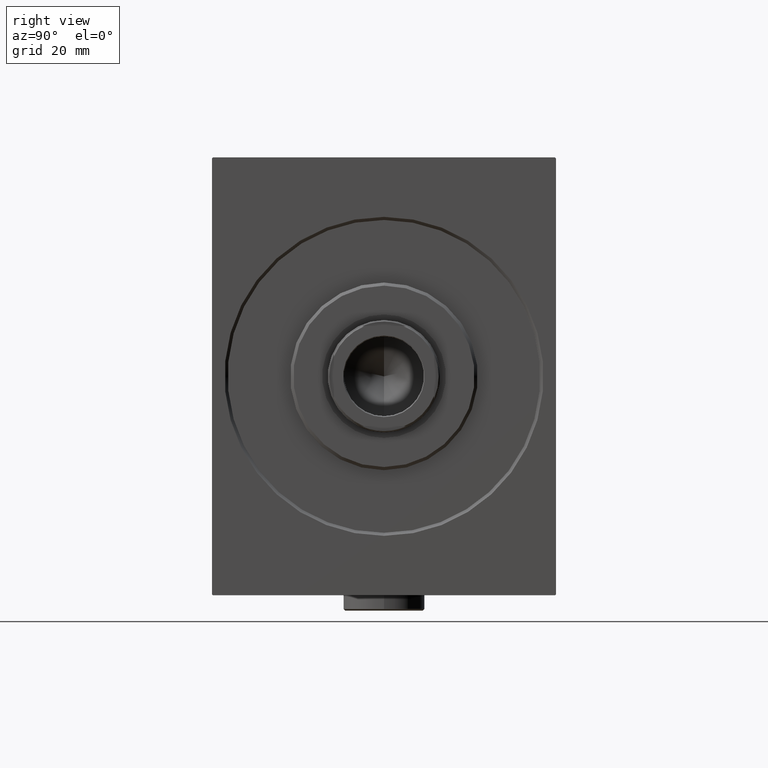
[diagram: clean part render]
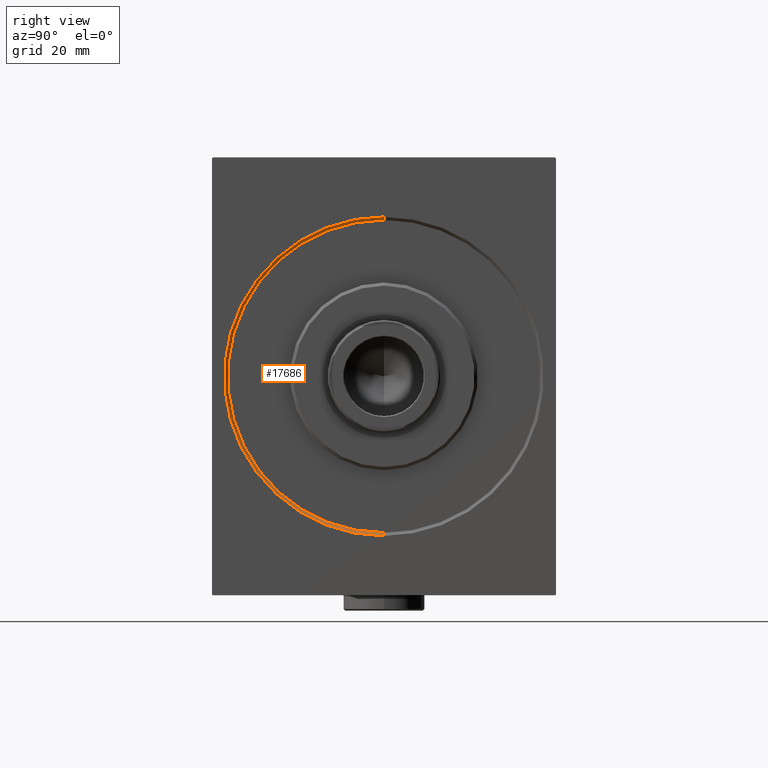
[diagram: same view with one face highlighted and labeled with its STEP entity id]
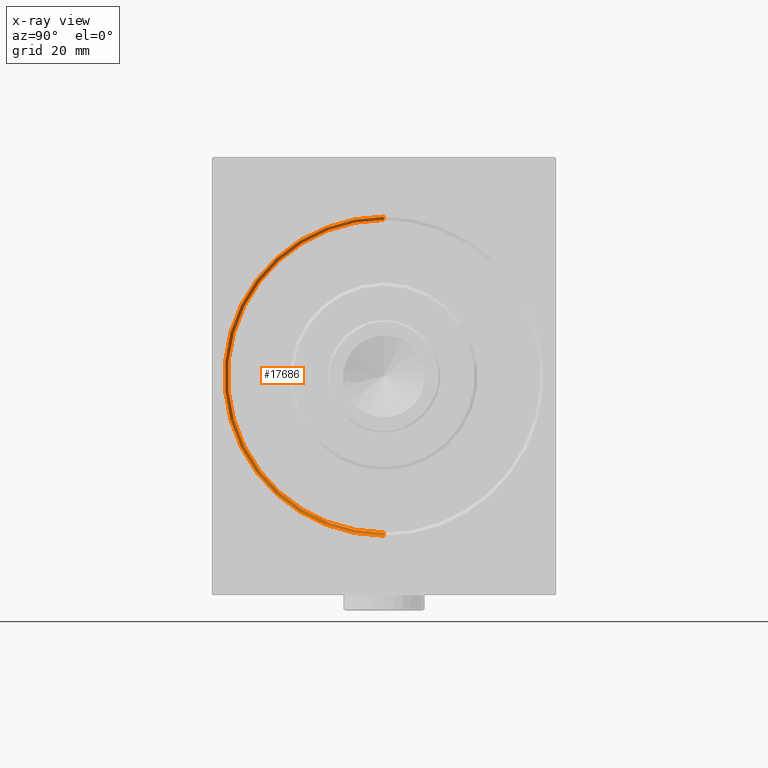
[diagram: x-ray of the same camera — body ghosted, the highlighted face saturated]
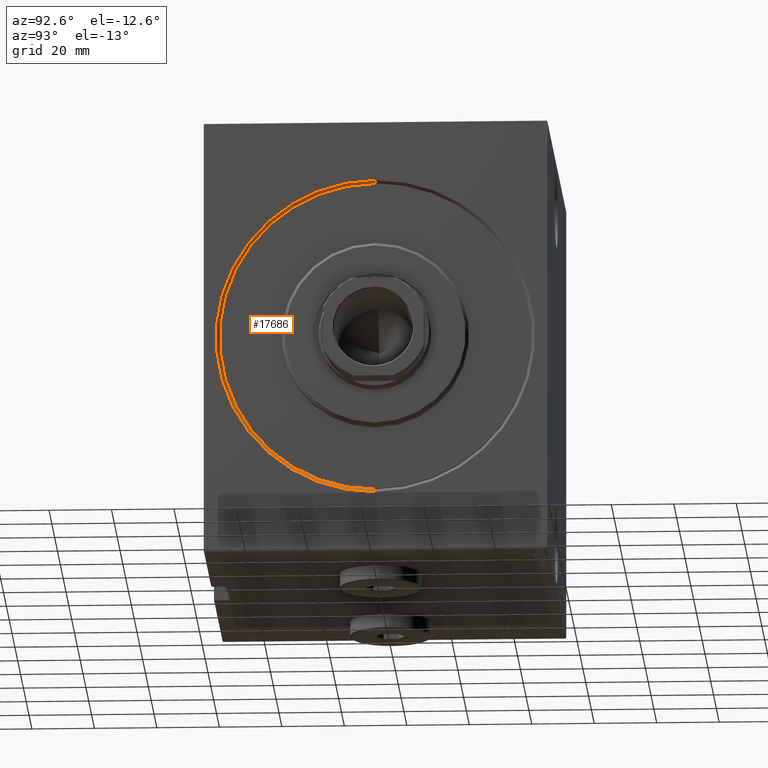
[diagram: same view with one face highlighted and labeled with its STEP entity id]
A machine part, right view. The second image highlights one B-rep face of the part: STEP entity #17686.
The next image is the same camera in x-ray: the body ghosted, the highlighted face saturated — about 0% of this face is hidden behind the body in this view.
A second angle (auxiliary view) of the same face is appended — the face is thin or edge-on in the first view.
In plain terms, the highlighted conical surface has half-angle 45 deg.
Its self-contained STEP definition (entity closure, byte-faithful):
#879 = CARTESIAN_POINT ( 'NONE',  ( 1.000000000000021760, 0.000000000000000000, 0.000000000000000000 ) ) ;
#2424 = CARTESIAN_POINT ( 'NONE',  ( 1.000000000000021760, 0.000000000000000000, 50.00000000000000000 ) ) ;
#3027 = EDGE_CURVE ( 'NONE', #29018, #43669, #32789, .T. ) ;
#3882 = ORIENTED_EDGE ( 'NONE', *, *, #34987, .F. ) ;
#4388 = CARTESIAN_POINT ( 'NONE',  ( 1.000000000000021760, 6.123233995736766085E-15, -50.00000000000000000 ) ) ;
#4605 = LINE ( 'NONE', #4388, #19532 ) ;
#6670 = AXIS2_PLACEMENT_3D ( 'NONE', #35009, #39000, #14710 ) ;
#12300 = VERTEX_POINT ( 'NONE', #18734 ) ;
#13031 = CONICAL_SURFACE ( 'NONE', #21657, 50.00000000000000000, 0.7853981633974309595 ) ;
#14710 = DIRECTION ( 'NONE',  ( 0.000000000000000000, 0.000000000000000000, -1.000000000000000000 ) ) ;
#16060 = CARTESIAN_POINT ( 'NONE',  ( 1.000000000000021760, 6.123233995736766085E-15, -50.00000000000000000 ) ) ;
#17686 = ADVANCED_FACE ( 'NONE', ( #35421 ), #13031, .F. ) ;
#18734 = CARTESIAN_POINT ( 'NONE',  ( 0.000000000000000000, 6.245698675651499656E-15, -50.99999999999999289 ) ) ;
#19277 = ORIENTED_EDGE ( 'NONE', *, *, #20181, .F. ) ;
#19532 = VECTOR ( 'NONE', #31560, 1000.000000000000000 ) ;
#20181 = EDGE_CURVE ( 'NONE', #29018, #28302, #32308, .T. ) ;
#21657 = AXIS2_PLACEMENT_3D ( 'NONE', #879, #38099, #24925 ) ;
#21780 = AXIS2_PLACEMENT_3D ( 'NONE', #39551, #22623, #36223 ) ;
#22623 = DIRECTION ( 'NONE',  ( 1.000000000000000000, 0.000000000000000000, 0.000000000000000000 ) ) ;
#24925 = DIRECTION ( 'NONE',  ( 0.000000000000000000, 0.000000000000000000, 1.000000000000000000 ) ) ;
#25303 = CIRCLE ( 'NONE', #21780, 50.99999999999999289 ) ;
#26757 = EDGE_CURVE ( 'NONE', #28302, #12300, #4605, .T. ) ;
#28302 = VERTEX_POINT ( 'NONE', #16060 ) ;
#29018 = VERTEX_POINT ( 'NONE', #2424 ) ;
#29582 = ORIENTED_EDGE ( 'NONE', *, *, #3027, .T. ) ;
#29954 = ORIENTED_EDGE ( 'NONE', *, *, #26757, .F. ) ;
#31560 = DIRECTION ( 'NONE',  ( -0.7071067811865597852, 8.659560562354781249E-17, -0.7071067811865352493 ) ) ;
#32308 = CIRCLE ( 'NONE', #6670, 50.00000000000000000 ) ;
#32568 = DIRECTION ( 'NONE',  ( -0.7071067811865597852, 0.000000000000000000, 0.7071067811865352493 ) ) ;
#32789 = LINE ( 'NONE', #43247, #33973 ) ;
#33442 = EDGE_LOOP ( 'NONE', ( #29954, #19277, #29582, #3882 ) ) ;
#33973 = VECTOR ( 'NONE', #32568, 1000.000000000000000 ) ;
#34987 = EDGE_CURVE ( 'NONE', #12300, #43669, #25303, .T. ) ;
#35009 = CARTESIAN_POINT ( 'NONE',  ( 1.000000000000021760, 0.000000000000000000, 0.000000000000000000 ) ) ;
#35421 = FACE_OUTER_BOUND ( 'NONE', #33442, .T. ) ;
#36223 = DIRECTION ( 'NONE',  ( 0.000000000000000000, 0.000000000000000000, -1.000000000000000000 ) ) ;
#38099 = DIRECTION ( 'NONE',  ( -1.000000000000000000, 0.000000000000000000, 0.000000000000000000 ) ) ;
#39000 = DIRECTION ( 'NONE',  ( -1.000000000000000000, 0.000000000000000000, 0.000000000000000000 ) ) ;
#39551 = CARTESIAN_POINT ( 'NONE',  ( 0.000000000000000000, 0.000000000000000000, 0.000000000000000000 ) ) ;
#39924 = CARTESIAN_POINT ( 'NONE',  ( 0.000000000000000000, 0.000000000000000000, 50.99999999999999289 ) ) ;
#43247 = CARTESIAN_POINT ( 'NONE',  ( 1.000000000000021760, 0.000000000000000000, 50.00000000000000000 ) ) ;
#43669 = VERTEX_POINT ( 'NONE', #39924 ) ;